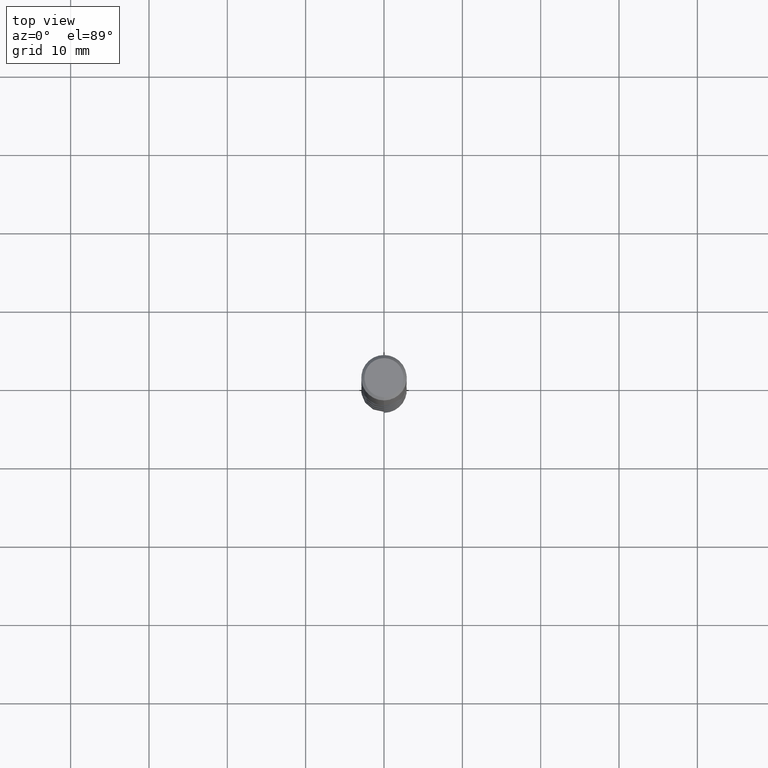
[diagram: clean part render]
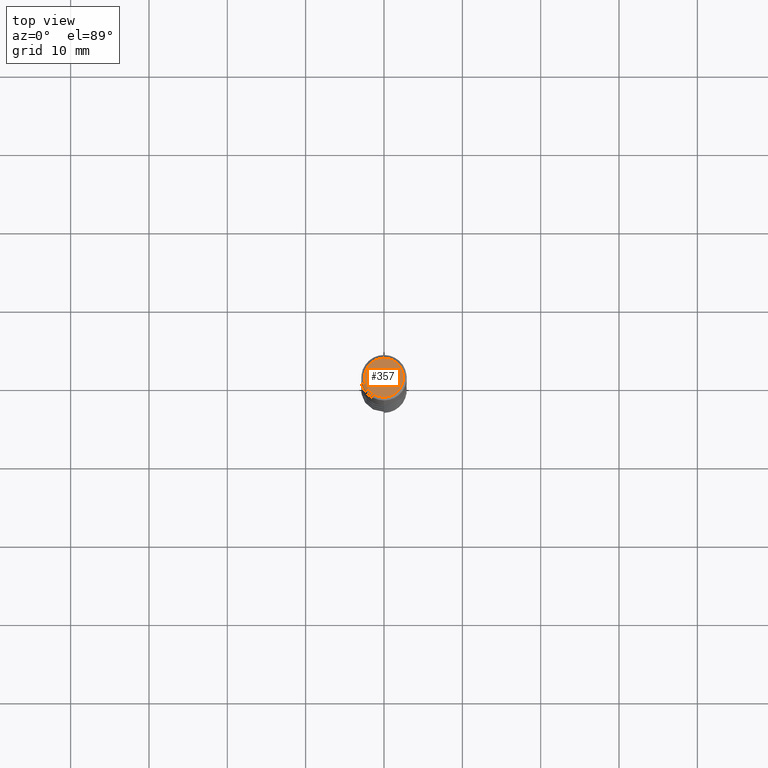
[diagram: same view with one face highlighted and labeled with its STEP entity id]
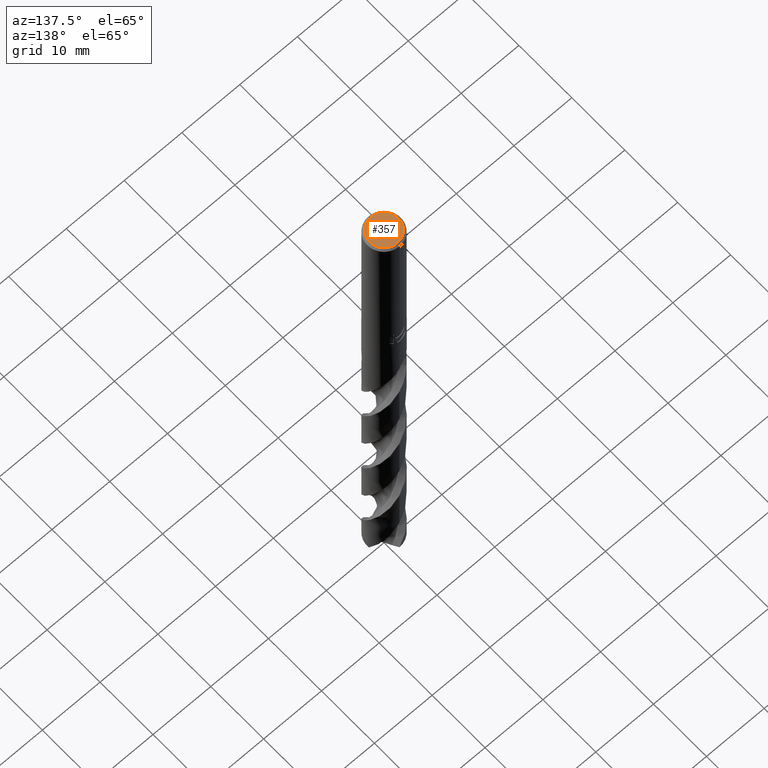
[diagram: same view with one face highlighted and labeled with its STEP entity id]
A machine part, top view. The second image highlights one B-rep face of the part: STEP entity #357.
A second angle (auxiliary view) of the same face is appended — the face is thin or edge-on in the first view.
In plain terms, the highlighted planar face has unit normal (-0, 0, 1).
Its self-contained STEP definition (entity closure, byte-faithful):
#303=EDGE_CURVE('',#733,#531,#826,.T.);
#357=ADVANCED_FACE('',(#884),#885,.T.);
#531=VERTEX_POINT('',#1076);
#587=EDGE_CURVE('',#531,#733,#1136,.T.);
#733=VERTEX_POINT('',#1296);
#826=CIRCLE('',#1400,2.5);
#884=FACE_OUTER_BOUND('',#2490,.T.);
#885=PLANE('',#2491);
#1076=CARTESIAN_POINT('',(3.06151588455594E-016,-2.5,0.0));
#1136=CIRCLE('',#6717,2.5);
#1296=CARTESIAN_POINT('',(0.0,2.5,0.0));
#1400=AXIS2_PLACEMENT_3D('',#12279,#12280,#12281);
#2490=EDGE_LOOP('',(#12320,#12321));
#2491=AXIS2_PLACEMENT_3D('',#12322,#12323,#12324);
#6717=AXIS2_PLACEMENT_3D('',#12600,#12601,#12602);
#12279=CARTESIAN_POINT('',(0.0,0.0,0.0));
#12280=DIRECTION('',(0.0,0.0,-1.0));
#12281=DIRECTION('',(0.0,1.0,0.0));
#12320=ORIENTED_EDGE('',*,*,#303,.F.);
#12321=ORIENTED_EDGE('',*,*,#587,.F.);
#12322=CARTESIAN_POINT('',(0.0,1.25,0.0));
#12323=DIRECTION('',(-0.0,0.0,1.0));
#12324=DIRECTION('',(0.0,-1.0,0.0));
#12600=CARTESIAN_POINT('',(0.0,0.0,0.0));
#12601=DIRECTION('',(0.0,0.0,-1.0));
#12602=DIRECTION('',(0.0,1.0,0.0));